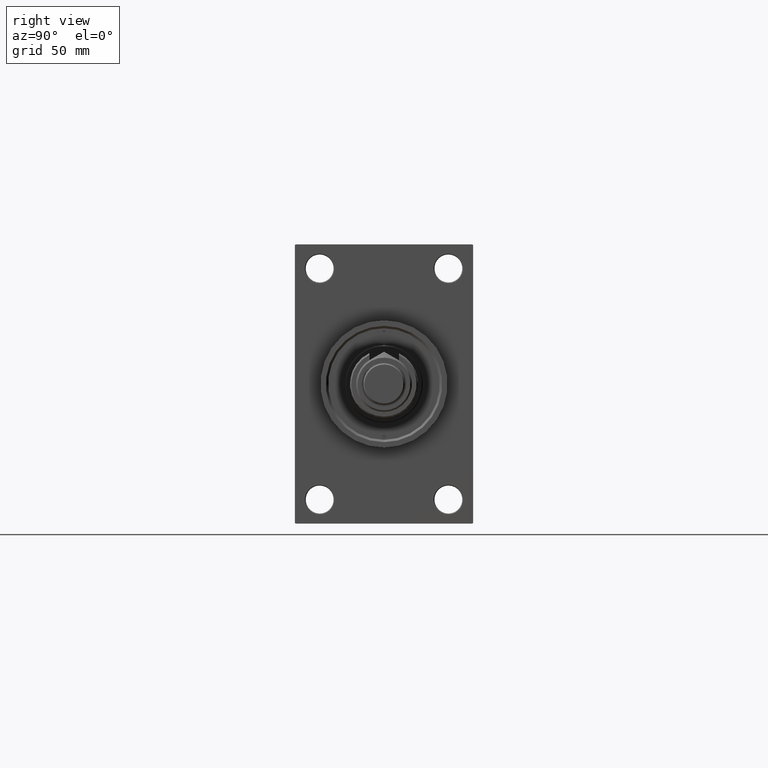
[diagram: clean part render]
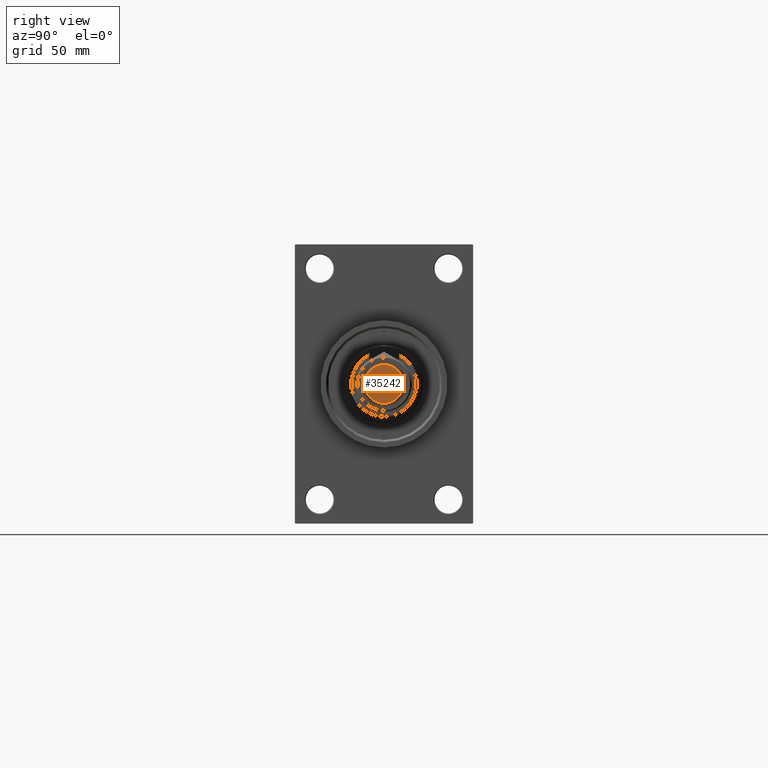
[diagram: same view with one face highlighted and labeled with its STEP entity id]
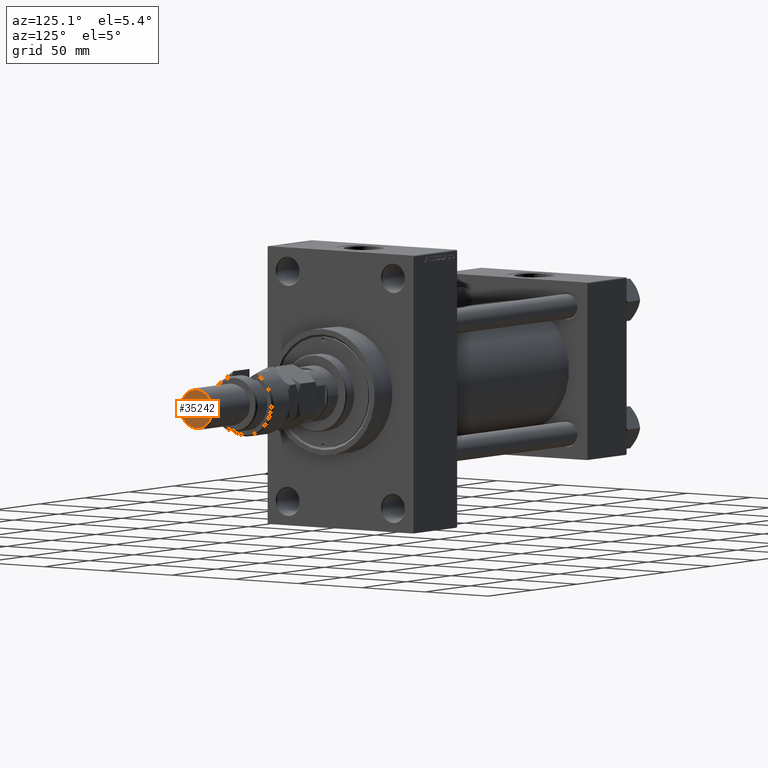
[diagram: same view with one face highlighted and labeled with its STEP entity id]
A machine part, right view. The second image highlights one B-rep face of the part: STEP entity #35242.
A second angle (auxiliary view) of the same face is appended — the face is thin or edge-on in the first view.
In plain terms, the highlighted planar face has unit normal (1, 0, 0).
Its self-contained STEP definition (entity closure, byte-faithful):
#1224 = EDGE_LOOP ( 'NONE', ( #16515, #15155 ) ) ;
#2480 = CARTESIAN_POINT ( 'NONE',  ( 12.50000000000000888, 1.592040838891559884E-15, 74.00000000000001421 ) ) ;
#4361 = EDGE_CURVE ( 'NONE', #17811, #17131, #37530, .T. ) ;
#8988 = EDGE_CURVE ( 'NONE', #17131, #17811, #33509, .T. ) ;
#14921 = CARTESIAN_POINT ( 'NONE',  ( 0.000000000000000000, 0.000000000000000000, 74.00000000000001421 ) ) ;
#15155 = ORIENTED_EDGE ( 'NONE', *, *, #4361, .T. ) ;
#15433 = DIRECTION ( 'NONE',  ( 0.000000000000000000, 0.000000000000000000, 1.000000000000000000 ) ) ;
#16070 = AXIS2_PLACEMENT_3D ( 'NONE', #14921, #18523, #30347 ) ;
#16515 = ORIENTED_EDGE ( 'NONE', *, *, #8988, .T. ) ;
#17131 = VERTEX_POINT ( 'NONE', #37269 ) ;
#17811 = VERTEX_POINT ( 'NONE', #2480 ) ;
#18523 = DIRECTION ( 'NONE',  ( 0.000000000000000000, 0.000000000000000000, 1.000000000000000000 ) ) ;
#22131 = PLANE ( 'NONE',  #16070 ) ;
#22873 = AXIS2_PLACEMENT_3D ( 'NONE', #29460, #36408, #28710 ) ;
#22910 = FACE_OUTER_BOUND ( 'NONE', #1224, .T. ) ;
#26996 = CARTESIAN_POINT ( 'NONE',  ( 0.000000000000000000, 0.000000000000000000, 74.00000000000001421 ) ) ;
#28710 = DIRECTION ( 'NONE',  ( 1.000000000000000000, 0.000000000000000000, 0.000000000000000000 ) ) ;
#29460 = CARTESIAN_POINT ( 'NONE',  ( 0.000000000000000000, 0.000000000000000000, 74.00000000000001421 ) ) ;
#30347 = DIRECTION ( 'NONE',  ( 1.000000000000000000, 0.000000000000000000, -0.000000000000000000 ) ) ;
#33509 = CIRCLE ( 'NONE', #22873, 12.50000000000000888 ) ;
#35242 = ADVANCED_FACE ( 'NONE', ( #22910 ), #22131, .T. ) ;
#36408 = DIRECTION ( 'NONE',  ( 0.000000000000000000, 0.000000000000000000, 1.000000000000000000 ) ) ;
#37269 = CARTESIAN_POINT ( 'NONE',  ( -12.50000000000000888, 0.000000000000000000, 74.00000000000001421 ) ) ;
#37530 = CIRCLE ( 'NONE', #41614, 12.50000000000000888 ) ;
#38789 = DIRECTION ( 'NONE',  ( 1.000000000000000000, 0.000000000000000000, 0.000000000000000000 ) ) ;
#41614 = AXIS2_PLACEMENT_3D ( 'NONE', #26996, #15433, #38789 ) ;